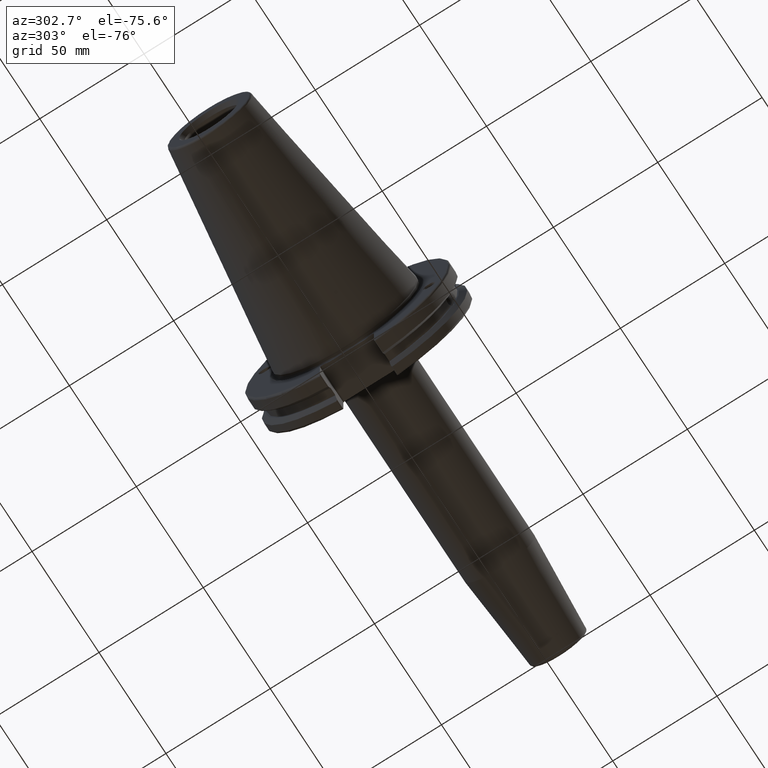
[diagram: clean part render]
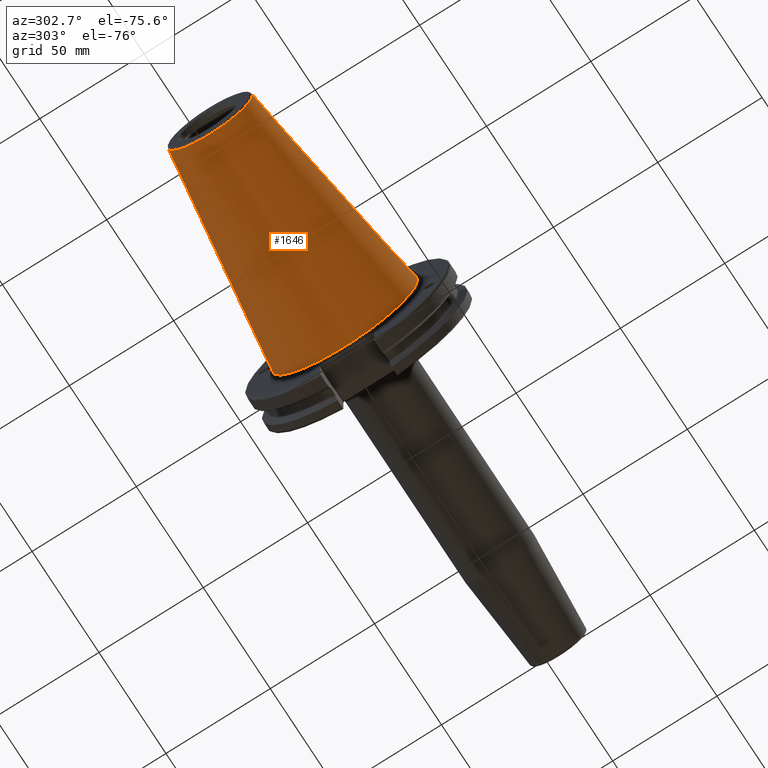
[diagram: same view with one face highlighted and labeled with its STEP entity id]
A machine part, auxiliary view. The second image highlights one B-rep face of the part: STEP entity #1646.
In plain terms, the highlighted conical surface has half-angle 8.297 deg.
Its self-contained STEP definition (entity closure, byte-faithful):
#235=FACE_OUTER_BOUND('',#346,.T.);
#346=EDGE_LOOP('',(#1415,#1416,#1417,#1418,#1419));
#460=LINE('',#3236,#560);
#560=VECTOR('',#2230,27.5166666666666);
#643=CIRCLE('',#1827,20.233121911427);
#644=CIRCLE('',#1828,20.233121911427);
#648=CIRCLE('',#1834,34.925);
#809=VERTEX_POINT('',#3223);
#810=VERTEX_POINT('',#3224);
#813=VERTEX_POINT('',#3234);
#1027=EDGE_CURVE('',#809,#810,#643,.T.);
#1028=EDGE_CURVE('',#810,#809,#644,.T.);
#1032=EDGE_CURVE('',#813,#813,#648,.T.);
#1033=EDGE_CURVE('',#813,#810,#460,.T.);
#1415=ORIENTED_EDGE('',*,*,#1032,.F.);
#1416=ORIENTED_EDGE('',*,*,#1033,.T.);
#1417=ORIENTED_EDGE('',*,*,#1027,.F.);
#1418=ORIENTED_EDGE('',*,*,#1028,.F.);
#1419=ORIENTED_EDGE('',*,*,#1033,.F.);
#1578=CONICAL_SURFACE('',#1833,27.5166666666666,0.14481249823894);
#1646=ADVANCED_FACE('',(#235),#1578,.T.);
#1827=AXIS2_PLACEMENT_3D('',#3225,#2214,#2215);
#1828=AXIS2_PLACEMENT_3D('',#3226,#2216,#2217);
#1833=AXIS2_PLACEMENT_3D('',#3233,#2226,#2227);
#1834=AXIS2_PLACEMENT_3D('',#3235,#2228,#2229);
#2214=DIRECTION('center_axis',(-1.,0.,0.));
#2215=DIRECTION('ref_axis',(0.,-1.,3.06161699786838E-17));
#2216=DIRECTION('center_axis',(-1.,0.,0.));
#2217=DIRECTION('ref_axis',(0.,-1.,3.06161699786838E-17));
#2226=DIRECTION('center_axis',(1.,0.,0.));
#2227=DIRECTION('ref_axis',(0.,1.,0.));
#2228=DIRECTION('center_axis',(1.,0.,0.));
#2229=DIRECTION('ref_axis',(0.,0.,-1.));
#2230=DIRECTION('',(-0.989532981063281,0.144306893071729,1.76724974695192E-17));
#3223=CARTESIAN_POINT('',(-100.744306893072,-2.47784279855872E-15,20.233121911427));
#3224=CARTESIAN_POINT('',(-100.744306893072,-20.233121911427,-2.47784279855872E-15));
#3225=CARTESIAN_POINT('Origin',(-100.744306893072,0.,-3.09730349819841E-15));
#3226=CARTESIAN_POINT('Origin',(-100.744306893072,0.,-3.09730349819841E-15));
#3233=CARTESIAN_POINT('Origin',(-50.8,0.,0.));
#3234=CARTESIAN_POINT('',(-8.88178419700125E-15,-34.925,-4.27707894602213E-15));
#3235=CARTESIAN_POINT('Origin',(0.,0.,0.));
#3236=CARTESIAN_POINT('',(-50.8,-27.5166666666666,-3.3698197756538E-15));